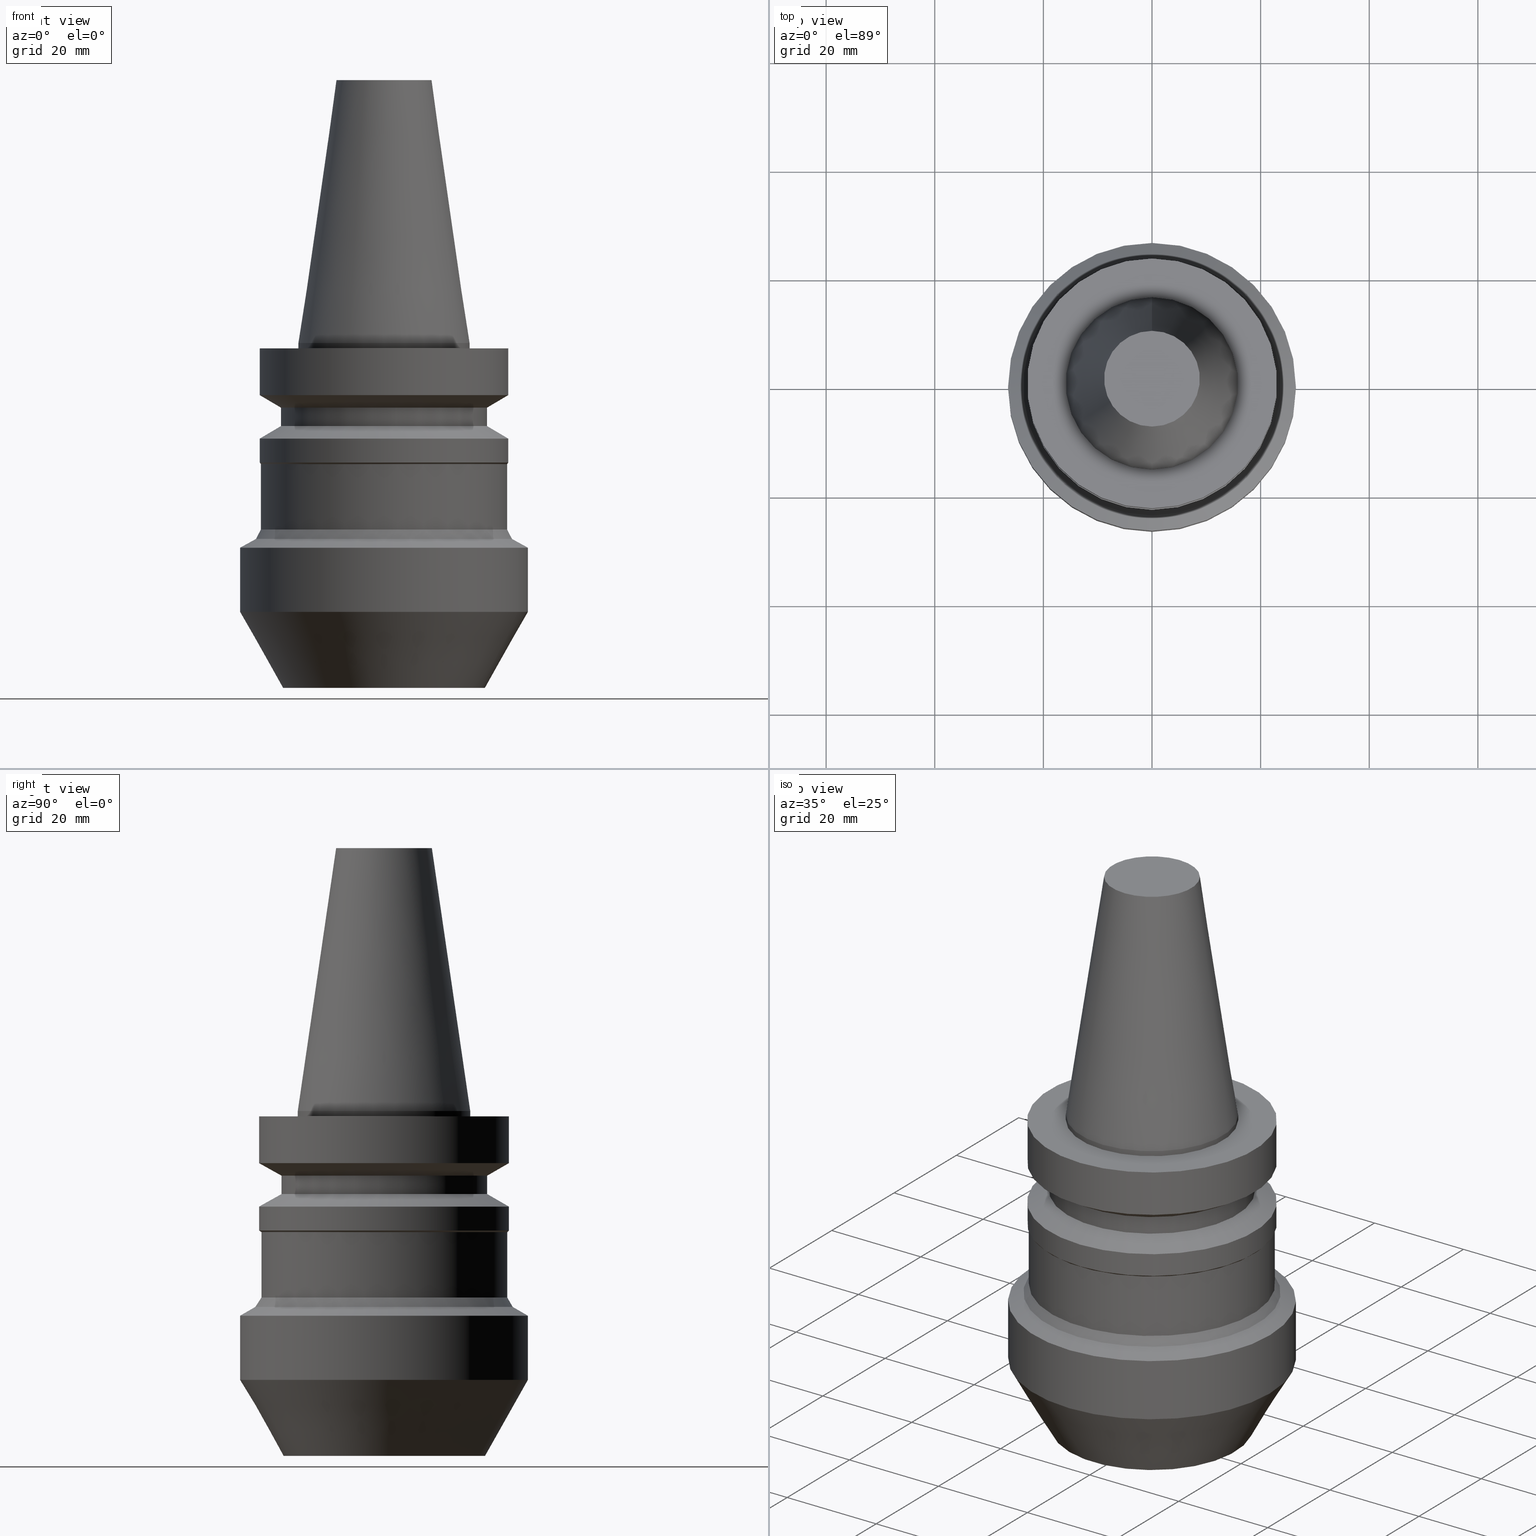
[diagram: canonical four-view strip — front | top / right | iso, engineering-drawing reading convention]
A machine part, canonical four-view strip (front | top / right | iso — engineering-drawing reading convention). The complete STEP part file that produces these views, byte-faithful:
ISO-10303-21;
HEADER;
FILE_DESCRIPTION((''),'1');
FILE_NAME('V:/90_\X2\53D65F9730C730FC30BF\X0\/00_\X2\6DE18DEF30C730FC30BF\X0\/ALL/BBT-BKUS\X2\FF76FF80FF9BFF78FF9E752852A05DE556F3\X0\201801/BBT30-HDC/BBT30-HDC.750-2.5.stp','2018-02-07T04:39:00',(''),(''),'Spatial Interop R21 SP3','Kubotek KeyCreator 2011 V10.0.2 (22737)',' ');
FILE_SCHEMA(('automotive_design'));
ENDSEC;
DATA;
#1=MECHANICAL_DESIGN_GEOMETRIC_PRESENTATION_REPRESENTATION(' ',(#10,#11,#12,#13,#14,#15,#16,#17,#18,#19,#20,#21,#22,#23,#24,#25,#26,#27,#28,#29,#30,#31,#32,#33,#34,#35,#36,#37,#38,#39,#40,#41),#6);
#2=PRODUCT_DEFINITION_CONTEXT('',#42,'design');
#3=APPLICATION_PROTOCOL_DEFINITION('INTERNATIONAL STANDARD','automotive_design',1994,#42);
#4=PRODUCT_CATEGORY_RELATIONSHIP('NONE','NONE',#43,#44);
#5=SHAPE_DEFINITION_REPRESENTATION(#45,#46);
#6= (GEOMETRIC_REPRESENTATION_CONTEXT(3)GLOBAL_UNCERTAINTY_ASSIGNED_CONTEXT((#49))GLOBAL_UNIT_ASSIGNED_CONTEXT((#51,#52,#53))REPRESENTATION_CONTEXT('NONE','WORKSPACE'));
#10=STYLED_ITEM('',(#55,#56),#57);
#11=STYLED_ITEM('',(#58,#59),#60);
#12=STYLED_ITEM('',(#61,#62),#63);
#13=STYLED_ITEM('',(#64,#65),#66);
#14=STYLED_ITEM('',(#67),#68);
#15=STYLED_ITEM('',(#69),#70);
#16=STYLED_ITEM('',(#71,#72),#73);
#17=STYLED_ITEM('',(#74,#75),#76);
#18=STYLED_ITEM('',(#77),#78);
#19=STYLED_ITEM('',(#79),#80);
#20=STYLED_ITEM('',(#81,#82),#83);
#21=STYLED_ITEM('',(#84),#85);
#22=STYLED_ITEM('',(#86),#87);
#23=STYLED_ITEM('',(#88,#89),#90);
#24=STYLED_ITEM('',(#91,#92),#93);
#25=STYLED_ITEM('',(#94,#95),#96);
#26=STYLED_ITEM('',(#97),#98);
#27=STYLED_ITEM('',(#99),#100);
#28=STYLED_ITEM('',(#101),#102);
#29=STYLED_ITEM('',(#103),#104);
#30=STYLED_ITEM('',(#105,#106),#107);
#31=STYLED_ITEM('',(#108,#109),#110);
#32=STYLED_ITEM('',(#111),#112);
#33=STYLED_ITEM('',(#113),#114);
#34=STYLED_ITEM('',(#115,#116),#117);
#35=STYLED_ITEM('',(#118),#119);
#36=STYLED_ITEM('',(#120,#121),#122);
#37=STYLED_ITEM('',(#123),#124);
#38=STYLED_ITEM('',(#125),#126);
#39=STYLED_ITEM('',(#127,#128),#129);
#40=STYLED_ITEM('',(#130,#131),#132);
#41=STYLED_ITEM('',(#133,#134),#135);
#42=APPLICATION_CONTEXT(' ');
#43=PRODUCT_CATEGORY('part','NONE');
#44=PRODUCT_RELATED_PRODUCT_CATEGORY('detail',' ',(#136));
#45=PRODUCT_DEFINITION_SHAPE('NONE','NONE',#137);
#46=ADVANCED_BREP_SHAPE_REPRESENTATION('Unnamed[1]',(#90,#138),#6);
#49=UNCERTAINTY_MEASURE_WITH_UNIT(LENGTH_MEASURE(1.0E-006),#51,'','');
#51= (CONVERSION_BASED_UNIT('MILLIMETRE',#141)LENGTH_UNIT()NAMED_UNIT(#144));
#52= (NAMED_UNIT(#146)PLANE_ANGLE_UNIT()SI_UNIT($,.RADIAN.));
#53= (NAMED_UNIT(#146)SOLID_ANGLE_UNIT()SI_UNIT($,.STERADIAN.));
#55=PRESENTATION_STYLE_ASSIGNMENT((#152));
#56=PRESENTATION_STYLE_ASSIGNMENT((#153));
#57=ADVANCED_FACE('Unnamed[1]',(#154,#155),#156,.T.);
#58=PRESENTATION_STYLE_ASSIGNMENT((#157));
#59=PRESENTATION_STYLE_ASSIGNMENT((#158));
#60=ADVANCED_FACE('Unnamed[1]',(#159,#160),#161,.T.);
#61=PRESENTATION_STYLE_ASSIGNMENT((#162));
#62=PRESENTATION_STYLE_ASSIGNMENT((#163));
#63=ADVANCED_FACE('Unnamed[1]',(#164,#165),#166,.T.);
#64=PRESENTATION_STYLE_ASSIGNMENT((#167));
#65=PRESENTATION_STYLE_ASSIGNMENT((#168));
#66=ADVANCED_FACE('Unnamed[1]',(#169),#170,.T.);
#67=PRESENTATION_STYLE_ASSIGNMENT((#171));
#68=EDGE_CURVE('Unnamed[1]',#172,#172,#173,.T.);
#69=PRESENTATION_STYLE_ASSIGNMENT((#174));
#70=EDGE_CURVE('Unnamed[1]',#175,#175,#176,.T.);
#71=PRESENTATION_STYLE_ASSIGNMENT((#177));
#72=PRESENTATION_STYLE_ASSIGNMENT((#178));
#73=ADVANCED_FACE('Unnamed[1]',(#179,#180),#181,.T.);
#74=PRESENTATION_STYLE_ASSIGNMENT((#182));
#75=PRESENTATION_STYLE_ASSIGNMENT((#183));
#76=ADVANCED_FACE('Unnamed[1]',(#184,#185),#186,.T.);
#77=PRESENTATION_STYLE_ASSIGNMENT((#187));
#78=EDGE_CURVE('Unnamed[1]',#188,#188,#189,.T.);
#79=PRESENTATION_STYLE_ASSIGNMENT((#190));
#80=EDGE_CURVE('Unnamed[1]',#191,#191,#192,.T.);
#81=PRESENTATION_STYLE_ASSIGNMENT((#193));
#82=PRESENTATION_STYLE_ASSIGNMENT((#194));
#83=ADVANCED_FACE('Unnamed[1]',(#195,#196),#197,.T.);
#84=PRESENTATION_STYLE_ASSIGNMENT((#198));
#85=EDGE_CURVE('Unnamed[1]',#199,#199,#200,.T.);
#86=PRESENTATION_STYLE_ASSIGNMENT((#201));
#87=EDGE_CURVE('Unnamed[1]',#202,#202,#203,.T.);
#88=PRESENTATION_STYLE_ASSIGNMENT((#204));
#89=PRESENTATION_STYLE_ASSIGNMENT((#205));
#90=MANIFOLD_SOLID_BREP('Unnamed[1]',#206);
#91=PRESENTATION_STYLE_ASSIGNMENT((#207));
#92=PRESENTATION_STYLE_ASSIGNMENT((#208));
#93=ADVANCED_FACE('Unnamed[1]',(#209,#210),#211,.T.);
#94=PRESENTATION_STYLE_ASSIGNMENT((#212));
#95=PRESENTATION_STYLE_ASSIGNMENT((#213));
#96=ADVANCED_FACE('Unnamed[1]',(#214,#215),#216,.T.);
#97=PRESENTATION_STYLE_ASSIGNMENT((#217));
#98=EDGE_CURVE('Unnamed[1]',#218,#218,#219,.T.);
#99=PRESENTATION_STYLE_ASSIGNMENT((#220));
#100=EDGE_CURVE('Unnamed[1]',#221,#221,#222,.T.);
#101=PRESENTATION_STYLE_ASSIGNMENT((#223));
#102=EDGE_CURVE('Unnamed[1]',#224,#224,#225,.T.);
#103=PRESENTATION_STYLE_ASSIGNMENT((#226));
#104=EDGE_CURVE('Unnamed[1]',#227,#227,#228,.T.);
#105=PRESENTATION_STYLE_ASSIGNMENT((#229));
#106=PRESENTATION_STYLE_ASSIGNMENT((#230));
#107=ADVANCED_FACE('Unnamed[1]',(#231,#232),#233,.T.);
#108=PRESENTATION_STYLE_ASSIGNMENT((#234));
#109=PRESENTATION_STYLE_ASSIGNMENT((#235));
#110=ADVANCED_FACE('Unnamed[1]',(#236,#237),#238,.T.);
#111=PRESENTATION_STYLE_ASSIGNMENT((#239));
#112=EDGE_CURVE('Unnamed[1]',#240,#240,#241,.T.);
#113=PRESENTATION_STYLE_ASSIGNMENT((#242));
#114=EDGE_CURVE('Unnamed[1]',#243,#243,#244,.T.);
#115=PRESENTATION_STYLE_ASSIGNMENT((#245));
#116=PRESENTATION_STYLE_ASSIGNMENT((#246));
#117=ADVANCED_FACE('Unnamed[1]',(#247),#248,.T.);
#118=PRESENTATION_STYLE_ASSIGNMENT((#249));
#119=EDGE_CURVE('Unnamed[1]',#250,#250,#251,.T.);
#120=PRESENTATION_STYLE_ASSIGNMENT((#252));
#121=PRESENTATION_STYLE_ASSIGNMENT((#253));
#122=ADVANCED_FACE('Unnamed[1]',(#254,#255),#256,.T.);
#123=PRESENTATION_STYLE_ASSIGNMENT((#257));
#124=EDGE_CURVE('Unnamed[1]',#258,#258,#259,.T.);
#125=PRESENTATION_STYLE_ASSIGNMENT((#260));
#126=EDGE_CURVE('Unnamed[1]',#261,#261,#262,.T.);
#127=PRESENTATION_STYLE_ASSIGNMENT((#263));
#128=PRESENTATION_STYLE_ASSIGNMENT((#264));
#129=ADVANCED_FACE('Unnamed[1]',(#265,#266),#267,.T.);
#130=PRESENTATION_STYLE_ASSIGNMENT((#268));
#131=PRESENTATION_STYLE_ASSIGNMENT((#269));
#132=ADVANCED_FACE('Unnamed[1]',(#270,#271),#272,.T.);
#133=PRESENTATION_STYLE_ASSIGNMENT((#273));
#134=PRESENTATION_STYLE_ASSIGNMENT((#274));
#135=ADVANCED_FACE('Unnamed[1]',(#275,#276),#277,.T.);
#136=PRODUCT('Unnamed[1]','Unnamed[1]','PART-Unnamed[1]-DESC',(#278));
#137=PRODUCT_DEFINITION('NONE','NONE',#279,#2);
#138=AXIS2_PLACEMENT_3D('',#280,#281,#282);
#141=LENGTH_MEASURE_WITH_UNIT(LENGTH_MEASURE(1.0),#283);
#144=DIMENSIONAL_EXPONENTS(1.0,0.0,0.0,0.0,0.0,0.0,0.0);
#146=DIMENSIONAL_EXPONENTS(0.0,0.0,0.0,0.0,0.0,0.0,0.0);
#152=SURFACE_STYLE_USAGE(.BOTH.,#284);
#153=CURVE_STYLE('',#285,POSITIVE_LENGTH_MEASURE(1000.0),#286);
#154=FACE_BOUND('',#287,.T.);
#155=FACE_BOUND('',#288,.T.);
#156=CONICAL_SURFACE('',#289,23.2000000000041,0.52359877559844);
#157=SURFACE_STYLE_USAGE(.BOTH.,#290);
#158=CURVE_STYLE('',#291,POSITIVE_LENGTH_MEASURE(1000.0),#292);
#159=FACE_BOUND('',#293,.T.);
#160=FACE_BOUND('',#294,.T.);
#161=CONICAL_SURFACE('',#295,25.1000000000021,1.04719755119665);
#162=SURFACE_STYLE_USAGE(.BOTH.,#296);
#163=CURVE_STYLE('',#297,POSITIVE_LENGTH_MEASURE(1000.0),#298);
#164=FACE_BOUND('',#299,.T.);
#165=FACE_BOUND('',#300,.T.);
#166=CYLINDRICAL_SURFACE('',#301,15.875);
#167=SURFACE_STYLE_USAGE(.BOTH.,#302);
#168=CURVE_STYLE('',#303,POSITIVE_LENGTH_MEASURE(1000.0),#304);
#169=FACE_OUTER_BOUND('',#305,.T.);
#170=PLANE('',#306);
#171=CURVE_STYLE('',#307,POSITIVE_LENGTH_MEASURE(1000.0),#308);
#172=VERTEX_POINT('',#309);
#173=CIRCLE('',#310,23.0);
#174=CURVE_STYLE('',#311,POSITIVE_LENGTH_MEASURE(1000.0),#312);
#175=VERTEX_POINT('',#313);
#176=CIRCLE('',#314,22.7000000000041);
#177=SURFACE_STYLE_USAGE(.BOTH.,#315);
#178=CURVE_STYLE('',#316,POSITIVE_LENGTH_MEASURE(1000.0),#317);
#179=FACE_BOUND('',#318,.T.);
#180=FACE_BOUND('',#319,.T.);
#181=CONICAL_SURFACE('',#320,22.8500000000005,0.785398163397454);
#182=SURFACE_STYLE_USAGE(.BOTH.,#321);
#183=CURVE_STYLE('',#322,POSITIVE_LENGTH_MEASURE(1000.0),#323);
#184=FACE_BOUND('',#324,.T.);
#185=FACE_BOUND('',#325,.T.);
#186=CONICAL_SURFACE('',#326,22.5526304238404,0.513462245776188);
#187=CURVE_STYLE('',#327,POSITIVE_LENGTH_MEASURE(1000.0),#328);
#188=VERTEX_POINT('',#329);
#189=CIRCLE('',#330,19.0);
#190=CURVE_STYLE('',#331,POSITIVE_LENGTH_MEASURE(1000.0),#332);
#191=VERTEX_POINT('',#333);
#192=CIRCLE('',#334,8.81650000198669);
#193=SURFACE_STYLE_USAGE(.BOTH.,#335);
#194=CURVE_STYLE('',#336,POSITIVE_LENGTH_MEASURE(1000.0),#337);
#195=FACE_BOUND('',#338,.T.);
#196=FACE_BOUND('',#339,.T.);
#197=CONICAL_SURFACE('',#340,12.3457500009933,0.144815870013618);
#198=CURVE_STYLE('',#341,POSITIVE_LENGTH_MEASURE(1000.0),#342);
#199=VERTEX_POINT('',#343);
#200=CIRCLE('',#344,22.7000000000011);
#201=CURVE_STYLE('',#345,POSITIVE_LENGTH_MEASURE(1000.0),#346);
#202=VERTEX_POINT('',#347);
#203=CIRCLE('',#348,23.0);
#204=SURFACE_STYLE_USAGE(.BOTH.,#349);
#205=CURVE_STYLE('',#350,POSITIVE_LENGTH_MEASURE(1000.0),#351);
#206=CLOSED_SHELL('',(#117,#83,#63,#96,#132,#93,#122,#129,#107,#73,#110,#57,#60,#135,#76,#66));
#207=SURFACE_STYLE_USAGE(.BOTH.,#352);
#208=CURVE_STYLE('',#353,POSITIVE_LENGTH_MEASURE(1000.0),#354);
#209=FACE_BOUND('',#355,.T.);
#210=FACE_BOUND('',#356,.T.);
#211=CONICAL_SURFACE('',#357,21.0,1.04719755058881);
#212=SURFACE_STYLE_USAGE(.BOTH.,#358);
#213=CURVE_STYLE('',#359,POSITIVE_LENGTH_MEASURE(1000.0),#360);
#214=FACE_OUTER_BOUND('',#361,.T.);
#215=FACE_BOUND('',#362,.T.);
#216=PLANE('',#363);
#217=CURVE_STYLE('',#364,POSITIVE_LENGTH_MEASURE(1000.0),#365);
#218=VERTEX_POINT('',#366);
#219=CIRCLE('',#367,23.0);
#220=CURVE_STYLE('',#368,POSITIVE_LENGTH_MEASURE(1000.0),#369);
#221=VERTEX_POINT('',#370);
#222=CIRCLE('',#371,23.0);
#223=CURVE_STYLE('',#372,POSITIVE_LENGTH_MEASURE(1000.0),#373);
#224=VERTEX_POINT('',#374);
#225=CIRCLE('',#375,23.7000000000042);
#226=CURVE_STYLE('',#376,POSITIVE_LENGTH_MEASURE(1000.0),#377);
#227=VERTEX_POINT('',#378);
#228=CIRCLE('',#379,26.5);
#229=SURFACE_STYLE_USAGE(.BOTH.,#380);
#230=CURVE_STYLE('',#381,POSITIVE_LENGTH_MEASURE(1000.0),#382);
#231=FACE_BOUND('',#383,.T.);
#232=FACE_BOUND('',#384,.T.);
#233=CYLINDRICAL_SURFACE('',#385,23.0);
#234=SURFACE_STYLE_USAGE(.BOTH.,#386);
#235=CURVE_STYLE('',#387,POSITIVE_LENGTH_MEASURE(1000.0),#388);
#236=FACE_BOUND('',#389,.T.);
#237=FACE_BOUND('',#390,.T.);
#238=CYLINDRICAL_SURFACE('',#391,22.7000000000026);
#239=CURVE_STYLE('',#392,POSITIVE_LENGTH_MEASURE(1000.0),#393);
#240=VERTEX_POINT('',#394);
#241=CIRCLE('',#395,19.0);
#242=CURVE_STYLE('',#396,POSITIVE_LENGTH_MEASURE(1000.0),#397);
#243=VERTEX_POINT('',#398);
#244=CIRCLE('',#399,15.875);
#245=SURFACE_STYLE_USAGE(.BOTH.,#400);
#246=CURVE_STYLE('',#401,POSITIVE_LENGTH_MEASURE(1000.0),#402);
#247=FACE_OUTER_BOUND('',#403,.T.);
#248=PLANE('',#404);
#249=CURVE_STYLE('',#405,POSITIVE_LENGTH_MEASURE(1000.0),#406);
#250=VERTEX_POINT('',#407);
#251=CIRCLE('',#408,15.875);
#252=SURFACE_STYLE_USAGE(.BOTH.,#409);
#253=CURVE_STYLE('',#410,POSITIVE_LENGTH_MEASURE(1000.0),#411);
#254=FACE_BOUND('',#412,.T.);
#255=FACE_BOUND('',#413,.T.);
#256=CYLINDRICAL_SURFACE('',#414,19.0);
#257=CURVE_STYLE('',#415,POSITIVE_LENGTH_MEASURE(1000.0),#416);
#258=VERTEX_POINT('',#417);
#259=CIRCLE('',#418,26.5);
#260=CURVE_STYLE('',#419,POSITIVE_LENGTH_MEASURE(1000.0),#420);
#261=VERTEX_POINT('',#421);
#262=CIRCLE('',#422,18.6052608476809);
#263=SURFACE_STYLE_USAGE(.BOTH.,#423);
#264=CURVE_STYLE('',#424,POSITIVE_LENGTH_MEASURE(1000.0),#425);
#265=FACE_BOUND('',#426,.T.);
#266=FACE_BOUND('',#427,.T.);
#267=CONICAL_SURFACE('',#428,21.0,1.04719755058882);
#268=SURFACE_STYLE_USAGE(.BOTH.,#429);
#269=CURVE_STYLE('',#430,POSITIVE_LENGTH_MEASURE(1000.0),#431);
#270=FACE_BOUND('',#432,.T.);
#271=FACE_BOUND('',#433,.T.);
#272=CYLINDRICAL_SURFACE('',#434,23.0);
#273=SURFACE_STYLE_USAGE(.BOTH.,#435);
#274=CURVE_STYLE('',#436,POSITIVE_LENGTH_MEASURE(1000.0),#437);
#275=FACE_BOUND('',#438,.T.);
#276=FACE_BOUND('',#439,.T.);
#277=CYLINDRICAL_SURFACE('',#440,26.5);
#278=PRODUCT_CONTEXT('',#42,'mechanical');
#279=PRODUCT_DEFINITION_FORMATION_WITH_SPECIFIED_SOURCE(' ','NONE',#136,.NOT_KNOWN.);
#280=CARTESIAN_POINT('',(0.0,0.0,0.0));
#281=DIRECTION('',(0.0,0.0,1.0));
#282=DIRECTION('',(1.0,0.0,0.0));
#283= (NAMED_UNIT(#144)LENGTH_UNIT()SI_UNIT(.MILLI.,.METRE.));
#284=SURFACE_SIDE_STYLE('',(#442));
#285=DRAUGHTING_PRE_DEFINED_CURVE_FONT('continuous');
#286=COLOUR_RGB('',0.0,1.0,0.0);
#287=EDGE_LOOP('',(#443));
#288=EDGE_LOOP('',(#444));
#289=AXIS2_PLACEMENT_3D('',#445,#446,#447);
#290=SURFACE_SIDE_STYLE('',(#448));
#291=DRAUGHTING_PRE_DEFINED_CURVE_FONT('continuous');
#292=COLOUR_RGB('',0.0,1.0,0.0);
#293=EDGE_LOOP('',(#449));
#294=EDGE_LOOP('',(#450));
#295=AXIS2_PLACEMENT_3D('',#451,#452,#453);
#296=SURFACE_SIDE_STYLE('',(#454));
#297=DRAUGHTING_PRE_DEFINED_CURVE_FONT('continuous');
#298=COLOUR_RGB('',0.0,1.0,0.0);
#299=EDGE_LOOP('',(#455));
#300=EDGE_LOOP('',(#456));
#301=AXIS2_PLACEMENT_3D('',#457,#458,#459);
#302=SURFACE_SIDE_STYLE('',(#460));
#303=DRAUGHTING_PRE_DEFINED_CURVE_FONT('continuous');
#304=COLOUR_RGB('',0.0,1.0,0.0);
#305=EDGE_LOOP('',(#461));
#306=AXIS2_PLACEMENT_3D('',#462,#463,#464);
#307=DRAUGHTING_PRE_DEFINED_CURVE_FONT('continuous');
#308=COLOUR_RGB('',0.0,1.0,0.0);
#309=CARTESIAN_POINT('',(6.12323399573674E-017,23.0,-0.999999999999997));
#310=AXIS2_PLACEMENT_3D('',#465,#466,#467);
#311=DRAUGHTING_PRE_DEFINED_CURVE_FONT('continuous');
#312=COLOUR_RGB('',0.0,1.0,0.0);
#313=CARTESIAN_POINT('',(2.10304305257173E-015,22.7000000000041,-34.3452994616235));
#314=AXIS2_PLACEMENT_3D('',#468,#469,#470);
#315=SURFACE_SIDE_STYLE('',(#471));
#316=DRAUGHTING_PRE_DEFINED_CURVE_FONT('continuous');
#317=COLOUR_RGB('',0.0,1.0,0.0);
#318=EDGE_LOOP('',(#472));
#319=EDGE_LOOP('',(#473));
#320=AXIS2_PLACEMENT_3D('',#474,#475,#476);
#321=SURFACE_SIDE_STYLE('',(#477));
#322=DRAUGHTING_PRE_DEFINED_CURVE_FONT('continuous');
#323=COLOUR_RGB('',0.0,1.0,0.0);
#324=EDGE_LOOP('',(#478));
#325=EDGE_LOOP('',(#479));
#326=AXIS2_PLACEMENT_3D('',#480,#481,#482);
#327=DRAUGHTING_PRE_DEFINED_CURVE_FONT('continuous');
#328=COLOUR_RGB('',0.0,1.0,0.0);
#329=CARTESIAN_POINT('',(7.29240495619202E-016,19.0,-11.90940108));
#330=AXIS2_PLACEMENT_3D('',#483,#484,#485);
#331=DRAUGHTING_PRE_DEFINED_CURVE_FONT('continuous');
#332=COLOUR_RGB('',0.0,1.0,0.0);
#333=CARTESIAN_POINT('',(-2.96364525393659E-015,8.81650000198669,48.4));
#334=AXIS2_PLACEMENT_3D('',#486,#487,#488);
#335=SURFACE_SIDE_STYLE('',(#489));
#336=DRAUGHTING_PRE_DEFINED_CURVE_FONT('continuous');
#337=COLOUR_RGB('',0.0,1.0,0.0);
#338=EDGE_LOOP('',(#490));
#339=EDGE_LOOP('',(#491));
#340=AXIS2_PLACEMENT_3D('',#492,#493,#494);
#341=DRAUGHTING_PRE_DEFINED_CURVE_FONT('continuous');
#342=COLOUR_RGB('',0.0,1.0,0.0);
#343=CARTESIAN_POINT('',(1.36548118104929E-015,22.7000000000011,-22.2999999999999));
#344=AXIS2_PLACEMENT_3D('',#495,#496,#497);
#345=DRAUGHTING_PRE_DEFINED_CURVE_FONT('continuous');
#346=COLOUR_RGB('',0.0,1.0,0.0);
#347=CARTESIAN_POINT('',(5.87830463590729E-016,23.0,-9.59999999999999));
#348=AXIS2_PLACEMENT_3D('',#498,#499,#500);
#349=SURFACE_SIDE_STYLE('',(#501));
#350=DRAUGHTING_PRE_DEFINED_CURVE_FONT('continuous');
#351=COLOUR_RGB('',0.0,1.0,0.0);
#352=SURFACE_SIDE_STYLE('',(#502));
#353=DRAUGHTING_PRE_DEFINED_CURVE_FONT('continuous');
#354=COLOUR_RGB('',0.0,1.0,0.0);
#355=EDGE_LOOP('',(#503));
#356=EDGE_LOOP('',(#504));
#357=AXIS2_PLACEMENT_3D('',#505,#506,#507);
#358=SURFACE_SIDE_STYLE('',(#508));
#359=DRAUGHTING_PRE_DEFINED_CURVE_FONT('continuous');
#360=COLOUR_RGB('',0.0,1.0,0.0);
#361=EDGE_LOOP('',(#509));
#362=EDGE_LOOP('',(#510));
#363=AXIS2_PLACEMENT_3D('',#511,#512,#513);
#364=DRAUGHTING_PRE_DEFINED_CURVE_FONT('continuous');
#365=COLOUR_RGB('',0.0,1.0,0.0);
#366=CARTESIAN_POINT('',(1.07768918324967E-015,23.0,-17.6));
#367=AXIS2_PLACEMENT_3D('',#514,#515,#516);
#368=DRAUGHTING_PRE_DEFINED_CURVE_FONT('continuous');
#369=COLOUR_RGB('',0.0,1.0,0.0);
#370=CARTESIAN_POINT('',(1.34711147906215E-015,23.0,-22.0000000000009));
#371=AXIS2_PLACEMENT_3D('',#517,#518,#519);
#372=DRAUGHTING_PRE_DEFINED_CURVE_FONT('continuous');
#373=COLOUR_RGB('',0.0,1.0,0.0);
#374=CARTESIAN_POINT('',(2.20910057644419E-015,23.7000000000042,-36.0773502691919));
#375=AXIS2_PLACEMENT_3D('',#520,#521,#522);
#376=DRAUGHTING_PRE_DEFINED_CURVE_FONT('continuous');
#377=COLOUR_RGB('',0.0,1.0,0.0);
#378=CARTESIAN_POINT('',(2.30808759872502E-015,26.5,-37.6939310229203));
#379=AXIS2_PLACEMENT_3D('',#523,#524,#525);
#380=SURFACE_SIDE_STYLE('',(#526));
#381=DRAUGHTING_PRE_DEFINED_CURVE_FONT('continuous');
#382=COLOUR_RGB('',0.0,1.0,0.0);
#383=EDGE_LOOP('',(#527));
#384=EDGE_LOOP('',(#528));
#385=AXIS2_PLACEMENT_3D('',#529,#530,#531);
#386=SURFACE_SIDE_STYLE('',(#532));
#387=DRAUGHTING_PRE_DEFINED_CURVE_FONT('continuous');
#388=COLOUR_RGB('',0.0,1.0,0.0);
#389=EDGE_LOOP('',(#533));
#390=EDGE_LOOP('',(#534));
#391=AXIS2_PLACEMENT_3D('',#535,#536,#537);
#392=DRAUGHTING_PRE_DEFINED_CURVE_FONT('continuous');
#393=COLOUR_RGB('',0.0,1.0,0.0);
#394=CARTESIAN_POINT('',(9.36279151221199E-016,19.0,-15.29059892));
#395=AXIS2_PLACEMENT_3D('',#538,#539,#540);
#396=DRAUGHTING_PRE_DEFINED_CURVE_FONT('continuous');
#397=COLOUR_RGB('',0.0,1.0,0.0);
#398=CARTESIAN_POINT('',(-1.95674482349743E-031,15.875,1.94412679364642E-015));
#399=AXIS2_PLACEMENT_3D('',#541,#542,#543);
#400=SURFACE_SIDE_STYLE('',(#544));
#401=DRAUGHTING_PRE_DEFINED_CURVE_FONT('continuous');
#402=COLOUR_RGB('',0.0,1.0,0.0);
#403=EDGE_LOOP('',(#545));
#404=AXIS2_PLACEMENT_3D('',#546,#547,#548);
#405=DRAUGHTING_PRE_DEFINED_CURVE_FONT('continuous');
#406=COLOUR_RGB('',0.0,1.0,0.0);
#407=CARTESIAN_POINT('',(6.12323399573675E-017,15.875,-0.999999999999998));
#408=AXIS2_PLACEMENT_3D('',#549,#550,#551);
#409=SURFACE_SIDE_STYLE('',(#552));
#410=DRAUGHTING_PRE_DEFINED_CURVE_FONT('continuous');
#411=COLOUR_RGB('',0.0,1.0,0.0);
#412=EDGE_LOOP('',(#553));
#413=EDGE_LOOP('',(#554));
#414=AXIS2_PLACEMENT_3D('',#555,#556,#557);
#415=DRAUGHTING_PRE_DEFINED_CURVE_FONT('continuous');
#416=COLOUR_RGB('',0.0,1.0,0.0);
#417=CARTESIAN_POINT('',(3.03100559411479E-015,26.5,-49.5000778383628));
#418=AXIS2_PLACEMENT_3D('',#558,#559,#560);
#419=DRAUGHTING_PRE_DEFINED_CURVE_FONT('continuous');
#420=COLOUR_RGB('',0.0,1.0,0.0);
#421=CARTESIAN_POINT('',(3.88825358729284E-015,18.6052608476809,-63.5));
#422=AXIS2_PLACEMENT_3D('',#561,#562,#563);
#423=SURFACE_SIDE_STYLE('',(#564));
#424=DRAUGHTING_PRE_DEFINED_CURVE_FONT('continuous');
#425=COLOUR_RGB('',0.0,1.0,0.0);
#426=EDGE_LOOP('',(#565));
#427=EDGE_LOOP('',(#566));
#428=AXIS2_PLACEMENT_3D('',#567,#568,#569);
#429=SURFACE_SIDE_STYLE('',(#570));
#430=DRAUGHTING_PRE_DEFINED_CURVE_FONT('continuous');
#431=COLOUR_RGB('',0.0,1.0,0.0);
#432=EDGE_LOOP('',(#571));
#433=EDGE_LOOP('',(#572));
#434=AXIS2_PLACEMENT_3D('',#573,#574,#575);
#435=SURFACE_SIDE_STYLE('',(#576));
#436=DRAUGHTING_PRE_DEFINED_CURVE_FONT('continuous');
#437=COLOUR_RGB('',0.0,1.0,0.0);
#438=EDGE_LOOP('',(#577));
#439=EDGE_LOOP('',(#578));
#440=AXIS2_PLACEMENT_3D('',#579,#580,#581);
#442=SURFACE_STYLE_FILL_AREA(#582);
#443=ORIENTED_EDGE('',*,*,#102,.F.);
#444=ORIENTED_EDGE('',*,*,#70,.T.);
#445=CARTESIAN_POINT('',(2.15607181450796E-015,4.31214362901592E-015,-35.2113248654077));
#446=DIRECTION('',(6.12323399573677E-017,1.22464679914735E-016,-1.0));
#447=DIRECTION('',(-1.23259516440783E-032,1.0,1.22464679914735E-016));
#448=SURFACE_STYLE_FILL_AREA(#583);
#449=ORIENTED_EDGE('',*,*,#104,.F.);
#450=ORIENTED_EDGE('',*,*,#102,.T.);
#451=CARTESIAN_POINT('',(2.2585940875846E-015,4.51718817516921E-015,-36.8856406460561));
#452=DIRECTION('',(6.12323399573677E-017,1.22464679914735E-016,-1.0));
#453=DIRECTION('',(-1.23259516440783E-032,1.0,1.22464679914735E-016));
#454=SURFACE_STYLE_FILL_AREA(#584);
#455=ORIENTED_EDGE('',*,*,#119,.F.);
#456=ORIENTED_EDGE('',*,*,#114,.T.);
#457=CARTESIAN_POINT('',(3.06161699786838E-017,6.12323399573676E-017,-0.5));
#458=DIRECTION('',(6.12323399573677E-017,1.22464679914735E-016,-1.0));
#459=DIRECTION('',(-1.23259516440783E-032,1.0,1.22464679914735E-016));
#460=SURFACE_STYLE_FILL_AREA(#585);
#461=ORIENTED_EDGE('',*,*,#126,.T.);
#462=CARTESIAN_POINT('',(3.88825358729284E-015,9.30263042384044,-63.5));
#463=DIRECTION('',(6.12323399573677E-017,1.22464679914735E-016,-1.0));
#464=DIRECTION('',(-1.23259516440783E-032,1.0,1.22464679914735E-016));
#465=CARTESIAN_POINT('',(6.12323399573677E-017,1.22464679914735E-016,-1.0));
#466=DIRECTION('',(6.12323399573677E-017,1.22464679914735E-016,-1.0));
#467=DIRECTION('',(-1.23259516440783E-032,1.0,1.22464679914735E-016));
#468=CARTESIAN_POINT('',(2.10304305257173E-015,4.20608610514345E-015,-34.3452994616235));
#469=DIRECTION('',(6.12323399573677E-017,1.22464679914735E-016,-1.0));
#470=DIRECTION('',(-1.23259516440783E-032,1.0,1.22464679914735E-016));
#471=SURFACE_STYLE_FILL_AREA(#586);
#472=ORIENTED_EDGE('',*,*,#85,.F.);
#473=ORIENTED_EDGE('',*,*,#100,.T.);
#474=CARTESIAN_POINT('',(1.35629633005572E-015,2.71259266011144E-015,-22.1500000000004));
#475=DIRECTION('',(-6.12323399573677E-017,-1.22464679914735E-016,1.0));
#476=DIRECTION('',(-1.23259516440783E-032,1.0,1.22464679914735E-016));
#477=SURFACE_STYLE_FILL_AREA(#587);
#478=ORIENTED_EDGE('',*,*,#126,.F.);
#479=ORIENTED_EDGE('',*,*,#124,.T.);
#480=CARTESIAN_POINT('',(3.45962959070382E-015,6.91925918140763E-015,-56.5000389191814));
#481=DIRECTION('',(-6.12323399573677E-017,-1.22464679914735E-016,1.0));
#482=DIRECTION('',(-1.23259516440783E-032,1.0,1.22464679914735E-016));
#483=CARTESIAN_POINT('',(7.29240495619202E-016,1.4584809912384E-015,-11.90940108));
#484=DIRECTION('',(6.12323399573677E-017,1.22464679914735E-016,-1.0));
#485=DIRECTION('',(-1.23259516440783E-032,1.0,1.22464679914735E-016));
#486=CARTESIAN_POINT('',(-2.96364525393659E-015,-5.92729050787319E-015,48.4));
#487=DIRECTION('',(6.12323399573677E-017,1.22464679914735E-016,-1.0));
#488=DIRECTION('',(-1.23259516440783E-032,1.0,1.22464679914735E-016));
#489=SURFACE_STYLE_FILL_AREA(#588);
#490=ORIENTED_EDGE('',*,*,#114,.F.);
#491=ORIENTED_EDGE('',*,*,#80,.T.);
#492=CARTESIAN_POINT('',(-1.4818226269683E-015,-2.96364525393659E-015,24.2));
#493=DIRECTION('',(6.12323399573677E-017,1.22464679914735E-016,-1.0));
#494=DIRECTION('',(-1.23259516440783E-032,1.0,1.22464679914735E-016));
#495=CARTESIAN_POINT('',(1.36548118104929E-015,2.73096236209858E-015,-22.2999999999999));
#496=DIRECTION('',(6.12323399573677E-017,1.22464679914735E-016,-1.0));
#497=DIRECTION('',(-1.23259516440783E-032,1.0,1.22464679914735E-016));
#498=CARTESIAN_POINT('',(5.87830463590729E-016,1.17566092718146E-015,-9.59999999999999));
#499=DIRECTION('',(6.12323399573677E-017,1.22464679914735E-016,-1.0));
#500=DIRECTION('',(-1.23259516440783E-032,1.0,1.22464679914735E-016));
#501=SURFACE_STYLE_FILL_AREA(#589);
#502=SURFACE_STYLE_FILL_AREA(#590);
#503=ORIENTED_EDGE('',*,*,#78,.F.);
#504=ORIENTED_EDGE('',*,*,#87,.T.);
#505=CARTESIAN_POINT('',(6.58535479604966E-016,1.31707095920993E-015,-10.75470054));
#506=DIRECTION('',(-6.12323399573677E-017,-1.22464679914735E-016,1.0));
#507=DIRECTION('',(-1.23259516440783E-032,1.0,1.22464679914735E-016));
#508=SURFACE_STYLE_FILL_AREA(#591);
#509=ORIENTED_EDGE('',*,*,#68,.F.);
#510=ORIENTED_EDGE('',*,*,#119,.T.);
#511=CARTESIAN_POINT('',(6.12323399573674E-017,19.4375,-0.999999999999998));
#512=DIRECTION('',(-6.12323399573677E-017,-1.22464679914735E-016,1.0));
#513=DIRECTION('',(1.23259516440783E-032,-1.0,-1.22464679914735E-016));
#514=CARTESIAN_POINT('',(1.07768918324967E-015,2.15537836649934E-015,-17.6));
#515=DIRECTION('',(6.12323399573677E-017,1.22464679914735E-016,-1.0));
#516=DIRECTION('',(-1.23259516440783E-032,1.0,1.22464679914735E-016));
#517=CARTESIAN_POINT('',(1.34711147906215E-015,2.69422295812429E-015,-22.0000000000009));
#518=DIRECTION('',(6.12323399573677E-017,1.22464679914735E-016,-1.0));
#519=DIRECTION('',(-1.23259516440783E-032,1.0,1.22464679914735E-016));
#520=CARTESIAN_POINT('',(2.20910057644419E-015,4.41820115288838E-015,-36.0773502691919));
#521=DIRECTION('',(6.12323399573677E-017,1.22464679914735E-016,-1.0));
#522=DIRECTION('',(-1.23259516440783E-032,1.0,1.22464679914735E-016));
#523=CARTESIAN_POINT('',(2.30808759872502E-015,4.61617519745004E-015,-37.6939310229203));
#524=DIRECTION('',(6.12323399573677E-017,1.22464679914735E-016,-1.0));
#525=DIRECTION('',(-1.23259516440783E-032,1.0,1.22464679914735E-016));
#526=SURFACE_STYLE_FILL_AREA(#592);
#527=ORIENTED_EDGE('',*,*,#100,.F.);
#528=ORIENTED_EDGE('',*,*,#98,.T.);
#529=CARTESIAN_POINT('',(1.21240033115591E-015,2.42480066231182E-015,-19.8000000000005));
#530=DIRECTION('',(6.12323399573677E-017,1.22464679914735E-016,-1.0));
#531=DIRECTION('',(-1.23259516440783E-032,1.0,1.22464679914735E-016));
#532=SURFACE_STYLE_FILL_AREA(#593);
#533=ORIENTED_EDGE('',*,*,#70,.F.);
#534=ORIENTED_EDGE('',*,*,#85,.T.);
#535=CARTESIAN_POINT('',(1.73426211681051E-015,3.46852423362102E-015,-28.3226497308117));
#536=DIRECTION('',(6.12323399573677E-017,1.22464679914735E-016,-1.0));
#537=DIRECTION('',(-1.23259516440783E-032,1.0,1.22464679914735E-016));
#538=CARTESIAN_POINT('',(9.36279151221199E-016,1.8725583024424E-015,-15.29059892));
#539=DIRECTION('',(6.12323399573677E-017,1.22464679914735E-016,-1.0));
#540=DIRECTION('',(-1.23259516440783E-032,1.0,1.22464679914735E-016));
#541=CARTESIAN_POINT('',(0.0,0.0,0.0));
#542=DIRECTION('',(6.12323399573677E-017,1.22464679914735E-016,-1.0));
#543=DIRECTION('',(-1.23259516440783E-032,1.0,1.22464679914735E-016));
#544=SURFACE_STYLE_FILL_AREA(#594);
#545=ORIENTED_EDGE('',*,*,#80,.F.);
#546=CARTESIAN_POINT('',(-2.96364525393659E-015,4.40825000099334,48.4));
#547=DIRECTION('',(-6.12323399573677E-017,-1.22464679914735E-016,1.0));
#548=DIRECTION('',(1.23259516440783E-032,-1.0,-1.22464679914735E-016));
#549=CARTESIAN_POINT('',(6.12323399573677E-017,1.22464679914735E-016,-1.0));
#550=DIRECTION('',(6.12323399573677E-017,1.22464679914735E-016,-1.0));
#551=DIRECTION('',(-1.23259516440783E-032,1.0,1.22464679914735E-016));
#552=SURFACE_STYLE_FILL_AREA(#595);
#553=ORIENTED_EDGE('',*,*,#112,.F.);
#554=ORIENTED_EDGE('',*,*,#78,.T.);
#555=CARTESIAN_POINT('',(8.32759823420201E-016,1.6655196468404E-015,-13.6));
#556=DIRECTION('',(6.12323399573677E-017,1.22464679914735E-016,-1.0));
#557=DIRECTION('',(-1.23259516440783E-032,1.0,1.22464679914735E-016));
#558=CARTESIAN_POINT('',(3.03100559411479E-015,6.06201118822958E-015,-49.5000778383628));
#559=DIRECTION('',(6.12323399573677E-017,1.22464679914735E-016,-1.0));
#560=DIRECTION('',(-1.23259516440783E-032,1.0,1.22464679914735E-016));
#561=CARTESIAN_POINT('',(3.88825358729284E-015,7.77650717458569E-015,-63.5));
#562=DIRECTION('',(6.12323399573677E-017,1.22464679914735E-016,-1.0));
#563=DIRECTION('',(-1.23259516440783E-032,1.0,1.22464679914735E-016));
#564=SURFACE_STYLE_FILL_AREA(#596);
#565=ORIENTED_EDGE('',*,*,#98,.F.);
#566=ORIENTED_EDGE('',*,*,#112,.T.);
#567=CARTESIAN_POINT('',(1.00698416723543E-015,2.01396833447087E-015,-16.44529946));
#568=DIRECTION('',(6.12323399573677E-017,1.22464679914735E-016,-1.0));
#569=DIRECTION('',(-1.23259516440783E-032,1.0,1.22464679914735E-016));
#570=SURFACE_STYLE_FILL_AREA(#597);
#571=ORIENTED_EDGE('',*,*,#87,.F.);
#572=ORIENTED_EDGE('',*,*,#68,.T.);
#573=CARTESIAN_POINT('',(3.24531401774048E-016,6.49062803548097E-016,-5.3));
#574=DIRECTION('',(6.12323399573677E-017,1.22464679914735E-016,-1.0));
#575=DIRECTION('',(-1.23259516440783E-032,1.0,1.22464679914735E-016));
#576=SURFACE_STYLE_FILL_AREA(#598);
#577=ORIENTED_EDGE('',*,*,#124,.F.);
#578=ORIENTED_EDGE('',*,*,#104,.T.);
#579=CARTESIAN_POINT('',(2.66954659641991E-015,5.33909319283981E-015,-43.5970044306415));
#580=DIRECTION('',(6.12323399573677E-017,1.22464679914735E-016,-1.0));
#581=DIRECTION('',(-1.23259516440783E-032,1.0,1.22464679914735E-016));
#582=FILL_AREA_STYLE('',(#599));
#583=FILL_AREA_STYLE('',(#600));
#584=FILL_AREA_STYLE('',(#601));
#585=FILL_AREA_STYLE('',(#602));
#586=FILL_AREA_STYLE('',(#603));
#587=FILL_AREA_STYLE('',(#604));
#588=FILL_AREA_STYLE('',(#605));
#589=FILL_AREA_STYLE('',(#606));
#590=FILL_AREA_STYLE('',(#607));
#591=FILL_AREA_STYLE('',(#608));
#592=FILL_AREA_STYLE('',(#609));
#593=FILL_AREA_STYLE('',(#610));
#594=FILL_AREA_STYLE('',(#611));
#595=FILL_AREA_STYLE('',(#612));
#596=FILL_AREA_STYLE('',(#613));
#597=FILL_AREA_STYLE('',(#614));
#598=FILL_AREA_STYLE('',(#615));
#599=FILL_AREA_STYLE_COLOUR('',#616);
#600=FILL_AREA_STYLE_COLOUR('',#617);
#601=FILL_AREA_STYLE_COLOUR('',#618);
#602=FILL_AREA_STYLE_COLOUR('',#619);
#603=FILL_AREA_STYLE_COLOUR('',#620);
#604=FILL_AREA_STYLE_COLOUR('',#621);
#605=FILL_AREA_STYLE_COLOUR('',#622);
#606=FILL_AREA_STYLE_COLOUR('',#623);
#607=FILL_AREA_STYLE_COLOUR('',#624);
#608=FILL_AREA_STYLE_COLOUR('',#625);
#609=FILL_AREA_STYLE_COLOUR('',#626);
#610=FILL_AREA_STYLE_COLOUR('',#627);
#611=FILL_AREA_STYLE_COLOUR('',#628);
#612=FILL_AREA_STYLE_COLOUR('',#629);
#613=FILL_AREA_STYLE_COLOUR('',#630);
#614=FILL_AREA_STYLE_COLOUR('',#631);
#615=FILL_AREA_STYLE_COLOUR('',#632);
#616=COLOUR_RGB('',0.0,1.0,0.0);
#617=COLOUR_RGB('',0.0,1.0,0.0);
#618=COLOUR_RGB('',0.0,1.0,0.0);
#619=COLOUR_RGB('',0.0,1.0,0.0);
#620=COLOUR_RGB('',0.0,1.0,0.0);
#621=COLOUR_RGB('',0.0,1.0,0.0);
#622=COLOUR_RGB('',0.0,1.0,0.0);
#623=COLOUR_RGB('',0.0,1.0,0.0);
#624=COLOUR_RGB('',0.0,1.0,0.0);
#625=COLOUR_RGB('',0.0,1.0,0.0);
#626=COLOUR_RGB('',0.0,1.0,0.0);
#627=COLOUR_RGB('',0.0,1.0,0.0);
#628=COLOUR_RGB('',0.0,1.0,0.0);
#629=COLOUR_RGB('',0.0,1.0,0.0);
#630=COLOUR_RGB('',0.0,1.0,0.0);
#631=COLOUR_RGB('',0.0,1.0,0.0);
#632=COLOUR_RGB('',0.0,1.0,0.0);
ENDSEC;
END-ISO-10303-21;
